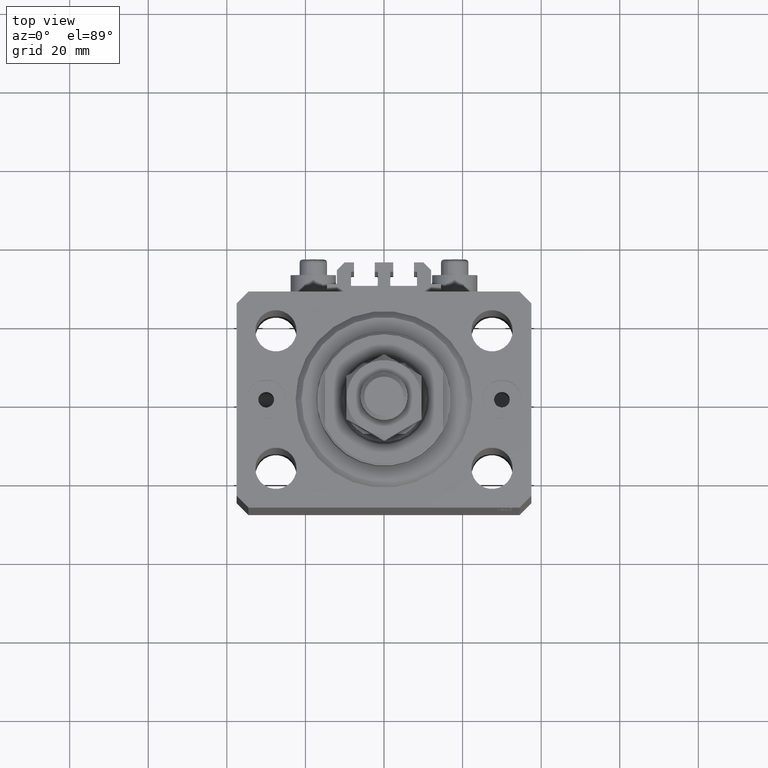
[diagram: clean part render]
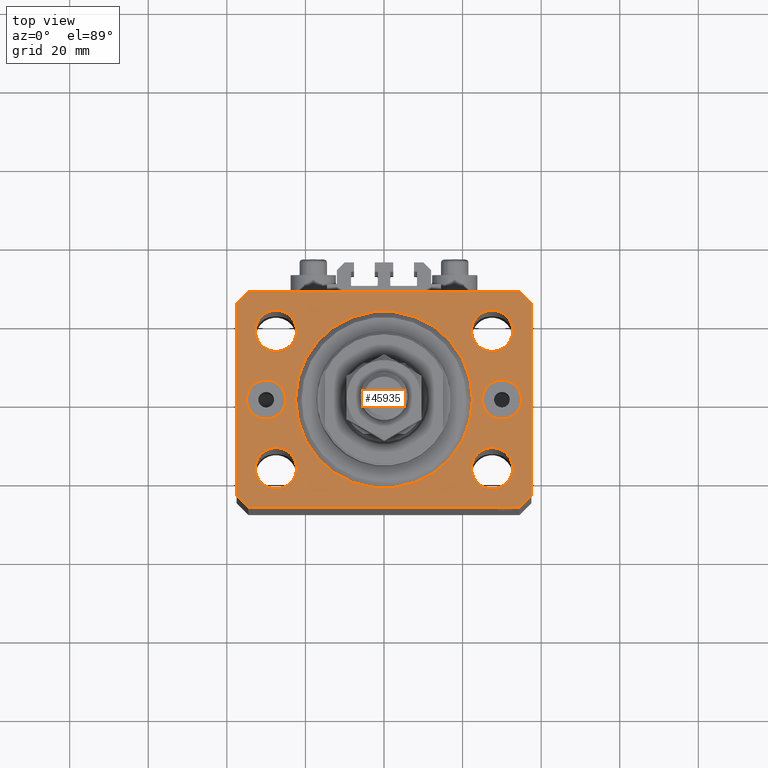
[diagram: same view with one face highlighted and labeled with its STEP entity id]
A machine part, top view. The second image highlights one B-rep face of the part: STEP entity #45935.
In plain terms, the highlighted planar face has unit normal (0, 0, 1).
Its self-contained STEP definition (entity closure, byte-faithful):
#33 = FACE_BOUND ( 'NONE', #12970, .T. ) ;
#93 = CARTESIAN_POINT ( 'NONE',  ( -27.49999999999999289, -17.50000000000000000, 0.000000000000000000 ) ) ;
#230 = EDGE_CURVE ( 'NONE', #46376, #47590, #28192, .T. ) ;
#1098 = DIRECTION ( 'NONE',  ( 0.000000000000000000, 0.000000000000000000, 1.000000000000000000 ) ) ;
#1332 = DIRECTION ( 'NONE',  ( -0.7071067811865471286, -0.7071067811865479058, 0.000000000000000000 ) ) ;
#1402 = LINE ( 'NONE', #16444, #22140 ) ;
#1557 = ORIENTED_EDGE ( 'NONE', *, *, #37361, .F. ) ;
#1949 = CARTESIAN_POINT ( 'NONE',  ( 34.50000000000056843, 27.50000000000000000, 0.000000000000000000 ) ) ;
#2008 = VECTOR ( 'NONE', #1332, 1000.000000000000000 ) ;
#2061 = DIRECTION ( 'NONE',  ( 1.076236605503979380E-14, 1.000000000000000000, 0.000000000000000000 ) ) ;
#2081 = AXIS2_PLACEMENT_3D ( 'NONE', #37515, #14781, #10593 ) ;
#2247 = VERTEX_POINT ( 'NONE', #36314 ) ;
#2318 = ORIENTED_EDGE ( 'NONE', *, *, #21923, .F. ) ;
#2329 = ORIENTED_EDGE ( 'NONE', *, *, #5253, .F. ) ;
#2677 = ORIENTED_EDGE ( 'NONE', *, *, #28673, .F. ) ;
#2763 = EDGE_CURVE ( 'NONE', #47590, #46376, #38411, .T. ) ;
#3368 = CIRCLE ( 'NONE', #4127, 5.250000000000000888 ) ;
#3402 = CARTESIAN_POINT ( 'NONE',  ( 34.49999999999999289, -27.49999999999999645, 0.000000000000000000 ) ) ;
#3422 = EDGE_LOOP ( 'NONE', ( #24340, #45899, #12572, #14313, #47797, #16521, #21463, #42586 ) ) ;
#3429 = CARTESIAN_POINT ( 'NONE',  ( 0.000000000000000000, 0.000000000000000000, 0.000000000000000000 ) ) ;
#3593 = CARTESIAN_POINT ( 'NONE',  ( -32.75000000000000000, 17.49999999999999645, 0.000000000000000000 ) ) ;
#3690 = CARTESIAN_POINT ( 'NONE',  ( -34.99999999999999289, 6.123233995736768255E-16, 0.000000000000000000 ) ) ;
#3979 = PLANE ( 'NONE',  #28016 ) ;
#4127 = AXIS2_PLACEMENT_3D ( 'NONE', #22167, #37226, #33521 ) ;
#4208 = CARTESIAN_POINT ( 'NONE',  ( 27.49999999999999289, -17.50000000000000000, 0.000000000000000000 ) ) ;
#4246 = DIRECTION ( 'NONE',  ( 1.000000000000000000, 0.000000000000000000, 0.000000000000000000 ) ) ;
#4665 = VECTOR ( 'NONE', #18574, 1000.000000000000000 ) ;
#5114 = CARTESIAN_POINT ( 'NONE',  ( -30.00000000000000000, 0.000000000000000000, 0.000000000000000000 ) ) ;
#5253 = EDGE_CURVE ( 'NONE', #42261, #12589, #3368, .T. ) ;
#5533 = DIRECTION ( 'NONE',  ( 1.000000000000000000, 0.000000000000000000, 0.000000000000000000 ) ) ;
#6613 = AXIS2_PLACEMENT_3D ( 'NONE', #48592, #7378, #30087 ) ;
#6688 = CIRCLE ( 'NONE', #42170, 5.250000000000000888 ) ;
#6908 = DIRECTION ( 'NONE',  ( 0.7071067811865474617, 0.7071067811865474617, 0.000000000000000000 ) ) ;
#6961 = FACE_BOUND ( 'NONE', #44090, .T. ) ;
#7056 = ORIENTED_EDGE ( 'NONE', *, *, #25594, .F. ) ;
#7197 = FACE_BOUND ( 'NONE', #30700, .T. ) ;
#7291 = AXIS2_PLACEMENT_3D ( 'NONE', #31707, #20599, #5533 ) ;
#7378 = DIRECTION ( 'NONE',  ( 0.000000000000000000, 0.000000000000000000, 1.000000000000000000 ) ) ;
#8020 = ORIENTED_EDGE ( 'NONE', *, *, #39893, .F. ) ;
#8325 = VERTEX_POINT ( 'NONE', #3402 ) ;
#8988 = CARTESIAN_POINT ( 'NONE',  ( 27.49999999999999289, -17.50000000000000000, 0.000000000000000000 ) ) ;
#9490 = VERTEX_POINT ( 'NONE', #16943 ) ;
#9492 = CARTESIAN_POINT ( 'NONE',  ( 32.74999999999999289, -17.50000000000000000, 0.000000000000000000 ) ) ;
#9542 = EDGE_CURVE ( 'NONE', #38993, #21299, #11902, .T. ) ;
#9676 = VERTEX_POINT ( 'NONE', #3593 ) ;
#9700 = CARTESIAN_POINT ( 'NONE',  ( -22.50000000000000355, 2.755455298081544383E-15, 0.000000000000000000 ) ) ;
#10391 = VERTEX_POINT ( 'NONE', #12853 ) ;
#10527 = EDGE_CURVE ( 'NONE', #8325, #9490, #40733, .T. ) ;
#10593 = DIRECTION ( 'NONE',  ( 1.000000000000000000, 0.000000000000000000, 0.000000000000000000 ) ) ;
#10894 = FACE_BOUND ( 'NONE', #11085, .T. ) ;
#11085 = EDGE_LOOP ( 'NONE', ( #43125, #24810 ) ) ;
#11159 = VERTEX_POINT ( 'NONE', #22533 ) ;
#11539 = VERTEX_POINT ( 'NONE', #1949 ) ;
#11684 = DIRECTION ( 'NONE',  ( 0.000000000000000000, 0.000000000000000000, 1.000000000000000000 ) ) ;
#11818 = EDGE_CURVE ( 'NONE', #11539, #48164, #1402, .T. ) ;
#11860 = DIRECTION ( 'NONE',  ( 1.000000000000000000, 0.000000000000000000, 0.000000000000000000 ) ) ;
#11902 = CIRCLE ( 'NONE', #34795, 4.999999999999997335 ) ;
#12357 = AXIS2_PLACEMENT_3D ( 'NONE', #4208, #34099, #11860 ) ;
#12572 = ORIENTED_EDGE ( 'NONE', *, *, #30196, .T. ) ;
#12589 = VERTEX_POINT ( 'NONE', #44382 ) ;
#12853 = CARTESIAN_POINT ( 'NONE',  ( -22.25000000000000000, 17.49999999999999645, 0.000000000000000000 ) ) ;
#12970 = EDGE_LOOP ( 'NONE', ( #2329, #7056 ) ) ;
#13017 = AXIS2_PLACEMENT_3D ( 'NONE', #18375, #33209, #41097 ) ;
#13148 = CARTESIAN_POINT ( 'NONE',  ( -37.49999999999999289, 24.50000000000000000, 0.000000000000000000 ) ) ;
#13399 = LINE ( 'NONE', #43283, #2008 ) ;
#14038 = DIRECTION ( 'NONE',  ( 0.000000000000000000, 0.000000000000000000, 1.000000000000000000 ) ) ;
#14134 = LINE ( 'NONE', #44973, #4665 ) ;
#14313 = ORIENTED_EDGE ( 'NONE', *, *, #19575, .T. ) ;
#14672 = VERTEX_POINT ( 'NONE', #9700 ) ;
#14781 = DIRECTION ( 'NONE',  ( 0.000000000000000000, 0.000000000000000000, 1.000000000000000000 ) ) ;
#15060 = VERTEX_POINT ( 'NONE', #3690 ) ;
#15317 = FACE_OUTER_BOUND ( 'NONE', #3422, .T. ) ;
#16220 = CIRCLE ( 'NONE', #44590, 5.250000000000000888 ) ;
#16298 = CARTESIAN_POINT ( 'NONE',  ( -30.00000000000000000, 0.000000000000000000, 0.000000000000000000 ) ) ;
#16444 = CARTESIAN_POINT ( 'NONE',  ( 34.50000000000056843, 27.50000000000000000, 0.000000000000000000 ) ) ;
#16521 = ORIENTED_EDGE ( 'NONE', *, *, #10527, .T. ) ;
#16759 = CIRCLE ( 'NONE', #39645, 5.250000000000000888 ) ;
#16855 = CARTESIAN_POINT ( 'NONE',  ( 37.49999999999999289, -24.50000000000000000, 0.000000000000000000 ) ) ;
#16943 = CARTESIAN_POINT ( 'NONE',  ( 37.49999999999999289, -24.50000000000000000, 0.000000000000000000 ) ) ;
#17172 = CARTESIAN_POINT ( 'NONE',  ( -37.49999999999999289, 24.50000000000000000, 0.000000000000000000 ) ) ;
#17710 = CIRCLE ( 'NONE', #30332, 22.50000000000000355 ) ;
#17852 = VERTEX_POINT ( 'NONE', #42910 ) ;
#17888 = CARTESIAN_POINT ( 'NONE',  ( -22.24999999999999289, -17.50000000000000000, 0.000000000000000000 ) ) ;
#18375 = CARTESIAN_POINT ( 'NONE',  ( 27.50000000000000000, 17.49999999999999289, 0.000000000000000000 ) ) ;
#18574 = DIRECTION ( 'NONE',  ( 0.7071067811865483499, -0.7071067811865466846, 0.000000000000000000 ) ) ;
#18958 = EDGE_LOOP ( 'NONE', ( #45144, #2677 ) ) ;
#19575 = EDGE_CURVE ( 'NONE', #21897, #17852, #14134, .T. ) ;
#19798 = DIRECTION ( 'NONE',  ( 0.000000000000000000, 0.000000000000000000, 1.000000000000000000 ) ) ;
#20181 = DIRECTION ( 'NONE',  ( 1.000000000000000000, 0.000000000000000000, 0.000000000000000000 ) ) ;
#20599 = DIRECTION ( 'NONE',  ( 0.000000000000000000, -0.000000000000000000, -1.000000000000000000 ) ) ;
#20683 = VECTOR ( 'NONE', #2061, 1000.000000000000000 ) ;
#20953 = ORIENTED_EDGE ( 'NONE', *, *, #29343, .F. ) ;
#21299 = VERTEX_POINT ( 'NONE', #21839 ) ;
#21463 = ORIENTED_EDGE ( 'NONE', *, *, #38302, .T. ) ;
#21822 = CIRCLE ( 'NONE', #13017, 5.250000000000000888 ) ;
#21839 = CARTESIAN_POINT ( 'NONE',  ( 25.00000000000000000, 6.123233995736762338E-16, 0.000000000000000000 ) ) ;
#21897 = VERTEX_POINT ( 'NONE', #38947 ) ;
#21923 = EDGE_CURVE ( 'NONE', #47187, #15060, #34674, .T. ) ;
#22140 = VECTOR ( 'NONE', #31516, 1000.000000000000000 ) ;
#22167 = CARTESIAN_POINT ( 'NONE',  ( -27.49999999999999289, -17.50000000000000000, 0.000000000000000000 ) ) ;
#22400 = EDGE_CURVE ( 'NONE', #2247, #14672, #31048, .T. ) ;
#22533 = CARTESIAN_POINT ( 'NONE',  ( 22.25000000000000000, 17.49999999999999289, 0.000000000000000000 ) ) ;
#22601 = CARTESIAN_POINT ( 'NONE',  ( 27.50000000000000000, 17.49999999999999289, 0.000000000000000000 ) ) ;
#23283 = VERTEX_POINT ( 'NONE', #45085 ) ;
#23962 = DIRECTION ( 'NONE',  ( 1.000000000000000000, 0.000000000000000000, 0.000000000000000000 ) ) ;
#24340 = ORIENTED_EDGE ( 'NONE', *, *, #11818, .T. ) ;
#24810 = ORIENTED_EDGE ( 'NONE', *, *, #40142, .T. ) ;
#25594 = EDGE_CURVE ( 'NONE', #12589, #42261, #6688, .T. ) ;
#25728 = DIRECTION ( 'NONE',  ( 1.000000000000000000, 0.000000000000000000, -0.000000000000000000 ) ) ;
#25786 = AXIS2_PLACEMENT_3D ( 'NONE', #8988, #1098, #46738 ) ;
#25894 = DIRECTION ( 'NONE',  ( 1.000000000000000000, 0.000000000000000000, 0.000000000000000000 ) ) ;
#26055 = DIRECTION ( 'NONE',  ( 0.000000000000000000, -0.000000000000000000, -1.000000000000000000 ) ) ;
#26428 = EDGE_CURVE ( 'NONE', #48164, #28116, #13399, .T. ) ;
#26547 = ORIENTED_EDGE ( 'NONE', *, *, #230, .F. ) ;
#26744 = DIRECTION ( 'NONE',  ( 1.000000000000000000, 0.000000000000000000, 0.000000000000000000 ) ) ;
#27551 = CARTESIAN_POINT ( 'NONE',  ( 22.24999999999999289, -17.50000000000000000, 0.000000000000000000 ) ) ;
#27702 = ORIENTED_EDGE ( 'NONE', *, *, #22400, .F. ) ;
#28016 = AXIS2_PLACEMENT_3D ( 'NONE', #48415, #44468, #25728 ) ;
#28116 = VERTEX_POINT ( 'NONE', #13148 ) ;
#28192 = CIRCLE ( 'NONE', #25786, 5.250000000000000888 ) ;
#28673 = EDGE_CURVE ( 'NONE', #9676, #10391, #42284, .T. ) ;
#29141 = CARTESIAN_POINT ( 'NONE',  ( 34.49999999999999289, -27.49999999999999645, 0.000000000000000000 ) ) ;
#29343 = EDGE_CURVE ( 'NONE', #31510, #11159, #21822, .T. ) ;
#29678 = FACE_BOUND ( 'NONE', #47852, .T. ) ;
#30087 = DIRECTION ( 'NONE',  ( 1.000000000000000000, 0.000000000000000000, 0.000000000000000000 ) ) ;
#30151 = FACE_BOUND ( 'NONE', #33522, .T. ) ;
#30196 = EDGE_CURVE ( 'NONE', #28116, #21897, #39898, .T. ) ;
#30238 = DIRECTION ( 'NONE',  ( 0.000000000000000000, 0.000000000000000000, 1.000000000000000000 ) ) ;
#30332 = AXIS2_PLACEMENT_3D ( 'NONE', #3429, #14038, #25894 ) ;
#30700 = EDGE_LOOP ( 'NONE', ( #20953, #8020 ) ) ;
#30753 = AXIS2_PLACEMENT_3D ( 'NONE', #5114, #35986, #20181 ) ;
#31014 = VECTOR ( 'NONE', #36829, 1000.000000000000114 ) ;
#31048 = CIRCLE ( 'NONE', #6613, 22.50000000000000355 ) ;
#31510 = VERTEX_POINT ( 'NONE', #42074 ) ;
#31516 = DIRECTION ( 'NONE',  ( -1.000000000000000000, 0.000000000000000000, 0.000000000000000000 ) ) ;
#31707 = CARTESIAN_POINT ( 'NONE',  ( 30.00000000000000000, 0.000000000000000000, 0.000000000000000000 ) ) ;
#31835 = EDGE_CURVE ( 'NONE', #10391, #9676, #16220, .T. ) ;
#32887 = CARTESIAN_POINT ( 'NONE',  ( 37.50000000000051870, 24.49999999999995381, 0.000000000000000000 ) ) ;
#32991 = DIRECTION ( 'NONE',  ( 1.000000000000000000, 0.000000000000000000, 0.000000000000000000 ) ) ;
#33209 = DIRECTION ( 'NONE',  ( 0.000000000000000000, 0.000000000000000000, 1.000000000000000000 ) ) ;
#33374 = VECTOR ( 'NONE', #47605, 1000.000000000000000 ) ;
#33521 = DIRECTION ( 'NONE',  ( 1.000000000000000000, 0.000000000000000000, 0.000000000000000000 ) ) ;
#33522 = EDGE_LOOP ( 'NONE', ( #27702, #39977 ) ) ;
#34099 = DIRECTION ( 'NONE',  ( 0.000000000000000000, 0.000000000000000000, 1.000000000000000000 ) ) ;
#34599 = DIRECTION ( 'NONE',  ( 0.000000000000000000, 0.000000000000000000, 1.000000000000000000 ) ) ;
#34674 = CIRCLE ( 'NONE', #30753, 5.000000000000000888 ) ;
#34795 = AXIS2_PLACEMENT_3D ( 'NONE', #40389, #26055, #32991 ) ;
#35308 = CARTESIAN_POINT ( 'NONE',  ( -34.49999999999999289, 27.50000000000000000, 0.000000000000000000 ) ) ;
#35986 = DIRECTION ( 'NONE',  ( 0.000000000000000000, 0.000000000000000000, 1.000000000000000000 ) ) ;
#36314 = CARTESIAN_POINT ( 'NONE',  ( 22.50000000000000355, 0.000000000000000000, 0.000000000000000000 ) ) ;
#36665 = CARTESIAN_POINT ( 'NONE',  ( 34.99999999999999289, 0.000000000000000000, 0.000000000000000000 ) ) ;
#36829 = DIRECTION ( 'NONE',  ( -0.7071067811865364705, 0.7071067811865584529, 0.000000000000000000 ) ) ;
#37226 = DIRECTION ( 'NONE',  ( 0.000000000000000000, 0.000000000000000000, 1.000000000000000000 ) ) ;
#37253 = CIRCLE ( 'NONE', #7291, 4.999999999999997335 ) ;
#37361 = EDGE_CURVE ( 'NONE', #15060, #47187, #45974, .T. ) ;
#37515 = CARTESIAN_POINT ( 'NONE',  ( -27.50000000000000000, 17.49999999999999645, 0.000000000000000000 ) ) ;
#38047 = FACE_BOUND ( 'NONE', #18958, .T. ) ;
#38302 = EDGE_CURVE ( 'NONE', #9490, #23283, #46971, .T. ) ;
#38411 = CIRCLE ( 'NONE', #12357, 5.250000000000000888 ) ;
#38947 = CARTESIAN_POINT ( 'NONE',  ( -37.49999999999999289, -24.50000000000000000, 0.000000000000000000 ) ) ;
#38993 = VERTEX_POINT ( 'NONE', #36665 ) ;
#39546 = CARTESIAN_POINT ( 'NONE',  ( -24.99999999999999645, 0.000000000000000000, 0.000000000000000000 ) ) ;
#39645 = AXIS2_PLACEMENT_3D ( 'NONE', #22601, #30238, #44316 ) ;
#39893 = EDGE_CURVE ( 'NONE', #11159, #31510, #16759, .T. ) ;
#39898 = LINE ( 'NONE', #17172, #41502 ) ;
#39977 = ORIENTED_EDGE ( 'NONE', *, *, #44996, .F. ) ;
#40142 = EDGE_CURVE ( 'NONE', #21299, #38993, #37253, .T. ) ;
#40389 = CARTESIAN_POINT ( 'NONE',  ( 30.00000000000000000, 0.000000000000000000, 0.000000000000000000 ) ) ;
#40441 = EDGE_CURVE ( 'NONE', #17852, #8325, #46684, .T. ) ;
#40733 = LINE ( 'NONE', #29141, #42672 ) ;
#41097 = DIRECTION ( 'NONE',  ( 1.000000000000000000, 0.000000000000000000, 0.000000000000000000 ) ) ;
#41247 = EDGE_CURVE ( 'NONE', #23283, #11539, #48409, .T. ) ;
#41502 = VECTOR ( 'NONE', #47289, 1000.000000000000000 ) ;
#42074 = CARTESIAN_POINT ( 'NONE',  ( 32.75000000000000000, 17.49999999999999289, 0.000000000000000000 ) ) ;
#42170 = AXIS2_PLACEMENT_3D ( 'NONE', #93, #11684, #26744 ) ;
#42261 = VERTEX_POINT ( 'NONE', #17888 ) ;
#42268 = CARTESIAN_POINT ( 'NONE',  ( -27.50000000000000000, 17.49999999999999645, 0.000000000000000000 ) ) ;
#42284 = CIRCLE ( 'NONE', #2081, 5.250000000000000888 ) ;
#42586 = ORIENTED_EDGE ( 'NONE', *, *, #41247, .T. ) ;
#42672 = VECTOR ( 'NONE', #6908, 1000.000000000000114 ) ;
#42817 = AXIS2_PLACEMENT_3D ( 'NONE', #16298, #34599, #23962 ) ;
#42910 = CARTESIAN_POINT ( 'NONE',  ( -34.49999999999998579, -27.49999999999999645, 0.000000000000000000 ) ) ;
#43125 = ORIENTED_EDGE ( 'NONE', *, *, #9542, .T. ) ;
#43283 = CARTESIAN_POINT ( 'NONE',  ( -34.49999999999999289, 27.50000000000000000, 0.000000000000000000 ) ) ;
#44090 = EDGE_LOOP ( 'NONE', ( #2318, #1557 ) ) ;
#44316 = DIRECTION ( 'NONE',  ( 1.000000000000000000, 0.000000000000000000, 0.000000000000000000 ) ) ;
#44381 = CARTESIAN_POINT ( 'NONE',  ( -34.49999999999998579, -27.49999999999999645, 0.000000000000000000 ) ) ;
#44382 = CARTESIAN_POINT ( 'NONE',  ( -32.74999999999999289, -17.50000000000000000, 0.000000000000000000 ) ) ;
#44468 = DIRECTION ( 'NONE',  ( 0.000000000000000000, 0.000000000000000000, 1.000000000000000000 ) ) ;
#44590 = AXIS2_PLACEMENT_3D ( 'NONE', #42268, #19798, #4246 ) ;
#44973 = CARTESIAN_POINT ( 'NONE',  ( -37.49999999999999289, -24.50000000000000000, 0.000000000000000000 ) ) ;
#44996 = EDGE_CURVE ( 'NONE', #14672, #2247, #17710, .T. ) ;
#45085 = CARTESIAN_POINT ( 'NONE',  ( 37.50000000000051870, 24.49999999999995381, 0.000000000000000000 ) ) ;
#45144 = ORIENTED_EDGE ( 'NONE', *, *, #31835, .F. ) ;
#45899 = ORIENTED_EDGE ( 'NONE', *, *, #26428, .T. ) ;
#45935 = ADVANCED_FACE ( 'NONE', ( #15317, #38047, #7197, #29678, #33, #30151, #6961, #10894 ), #3979, .T. ) ;
#45974 = CIRCLE ( 'NONE', #42817, 5.000000000000000888 ) ;
#46376 = VERTEX_POINT ( 'NONE', #27551 ) ;
#46684 = LINE ( 'NONE', #44381, #33374 ) ;
#46738 = DIRECTION ( 'NONE',  ( 1.000000000000000000, 0.000000000000000000, 0.000000000000000000 ) ) ;
#46971 = LINE ( 'NONE', #16855, #20683 ) ;
#47187 = VERTEX_POINT ( 'NONE', #39546 ) ;
#47289 = DIRECTION ( 'NONE',  ( 0.000000000000000000, -1.000000000000000000, 0.000000000000000000 ) ) ;
#47553 = ORIENTED_EDGE ( 'NONE', *, *, #2763, .F. ) ;
#47590 = VERTEX_POINT ( 'NONE', #9492 ) ;
#47605 = DIRECTION ( 'NONE',  ( 1.000000000000000000, 0.000000000000000000, 0.000000000000000000 ) ) ;
#47797 = ORIENTED_EDGE ( 'NONE', *, *, #40441, .T. ) ;
#47852 = EDGE_LOOP ( 'NONE', ( #47553, #26547 ) ) ;
#48164 = VERTEX_POINT ( 'NONE', #35308 ) ;
#48409 = LINE ( 'NONE', #32887, #31014 ) ;
#48415 = CARTESIAN_POINT ( 'NONE',  ( 0.000000000000000000, 0.000000000000000000, 0.000000000000000000 ) ) ;
#48592 = CARTESIAN_POINT ( 'NONE',  ( 0.000000000000000000, 0.000000000000000000, 0.000000000000000000 ) ) ;